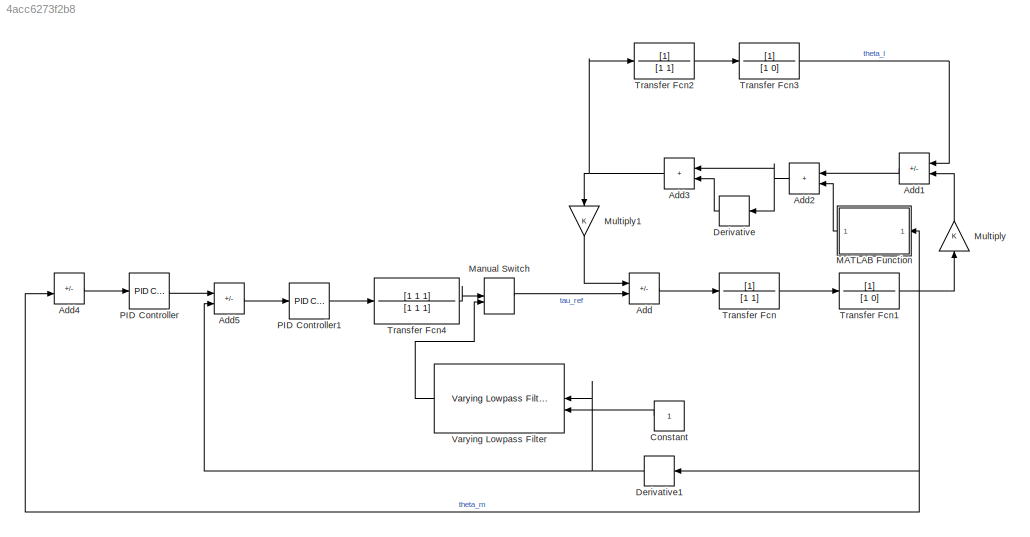
MODEL slx_4acc6273f2b8
KIND model
CONFIG AbsTol = auto
CONFIG EnableMultiTasking = off
CONFIG FixedStep = auto
CONFIG MaxStep = auto
CONFIG MinStep = auto
CONFIG RelTol = 1e-3
CONFIG SampleTimeConstraint = Unconstrained
CONFIG SolverName = VariableStepAuto
CONFIG StartTime = 0.0
CONFIG StopTime = 10.0
BLOCK [Sum] Add
  IconShape = rectangular
  Inputs = -+
BLOCK [Sum] Add1
  IconShape = rectangular
  Inputs = -+
  NameLocation = top
BLOCK [Sum] Add2
  IconShape = rectangular
  NameLocation = top
BLOCK [Sum] Add3
  IconShape = rectangular
  NameLocation = top
BLOCK [Sum] Add4
  IconShape = rectangular
  Inputs = +-
BLOCK [Sum] Add5
  IconShape = rectangular
  Inputs = +-
BLOCK [Constant] Constant
  NameLocation = top
BLOCK [Derivative] Derivative
  NameLocation = top
BLOCK [Derivative] Derivative1
  NameLocation = top
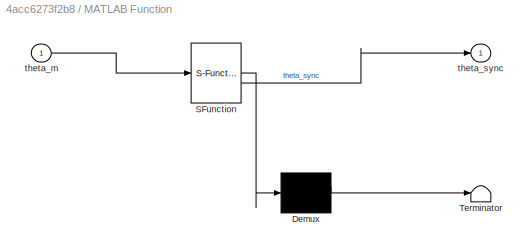
BLOCK [SubSystem] MATLAB Function
  ErrorFcn = Stateflow.Translate.translate
  LibrarySourceBlock = simulink/User-Defined\nFunctions/MATLAB Function
  NameLocation = top
  PermitHierarchicalResolution = ExplicitOnly
  SFBlockType = MATLAB Function
  TreatAsAtomicUnit = on
BLOCK [Demux] MATLAB Function/ Demux 
  Outputs = 1
BLOCK [S-Function] MATLAB Function/ SFunction 
  EnableBusSupport = off
  FunctionName = sf_sfun
  PortCounts = [1 2]
  SFcnIsStateOwnerBlock = off
  SFunctionDeploymentMode = off
  Tag = Stateflow S-Function 2
BLOCK [Terminator] MATLAB Function/ Terminator 
BLOCK [Inport] MATLAB Function/theta_m
BLOCK [Outport] MATLAB Function/theta_sync
BLOCK [ManualSwitch] Manual Switch
BLOCK [Gain] Multiply
  NameLocation = right
BLOCK [Gain] Multiply1
  NameLocation = left
BLOCK [Reference] PID Controller  REF=slpidlib/PID Controller
  LibrarySourceBlock = simulink/Continuous/PID Controller
  SourceBlock = slpidlib/PID Controller
  SourceType = PID 1dof
BLOCK [Reference] PID Controller1  REF=slpidlib/PID Controller
  LibrarySourceBlock = simulink/Continuous/PID Controller
  SourceBlock = slpidlib/PID Controller
  SourceType = PID 1dof
BLOCK [TransferFcn] Transfer Fcn
  Denominator = [1 1]
BLOCK [TransferFcn] Transfer Fcn1
  Denominator = [1 0]
BLOCK [TransferFcn] Transfer Fcn2
  Denominator = [1 1]
BLOCK [TransferFcn] Transfer Fcn3
  Denominator = [1 0]
BLOCK [TransferFcn] Transfer Fcn4
  Denominator = [1 1 1]
  Numerator = [1 1 1]
BLOCK [Reference] Varying Lowpass Filter  REF=cstblocks/Linear Parameter Varying/Varying Lowpass Filter
  NameLocation = top
  SourceBlock = cstblocks/Linear Parameter Varying/Varying Lowpass Filter
  SourceType = Varying Lowpass Filter
LINE Add1:1 -> Add2:1
NET Add2:1 -> Add3:1, Derivative:1
NET Add3:1 -> Multiply1:1, Transfer Fcn2:1
LINE Add4:1 -> PID Controller:1
LINE Add5:1 -> PID Controller1:1
LINE Add:1 -> Transfer Fcn:1
LINE Constant:1 -> Varying Lowpass Filter:2
NET Derivative1:1 -> Add5:2, Varying Lowpass Filter:1
LINE Derivative:1 -> Add3:2
LINE MATLAB Function:1 -> Add2:2
LINE Manual Switch:1 -> Add:2
LINE Multiply1:1 -> Add:1
LINE Multiply:1 -> Add1:2
LINE PID Controller1:1 -> Transfer Fcn4:1
LINE PID Controller:1 -> Add5:1
NET Transfer Fcn1:1 -> Add4:2, Derivative1:1, MATLAB Function:1, Multiply:1
LINE Transfer Fcn2:1 -> Transfer Fcn3:1
LINE Transfer Fcn3:1 -> Add1:1
LINE Transfer Fcn4:1 -> Manual Switch:1
LINE Transfer Fcn:1 -> Transfer Fcn1:1
LINE Varying Lowpass Filter:1 -> Manual Switch:2
note: NET lines group one-source signal fan-out (src -> all destinations, sorted); 1:1 wires keep LINE
CHART MATLAB Function states=1 transitions=1
  STATE_LABEL 'eML_blk_kernel()'
  STATE_LABEL 'SCRIPT:\nfunction theta_sync = fcn(theta_m)\n\ntheta_sync = 5 * cos(2 * theta_m + 222 * pi / 180) + 3 * cos(4 *theta_m + 126 * pi / 180);\n'
CHART  states=0 transitions=0
